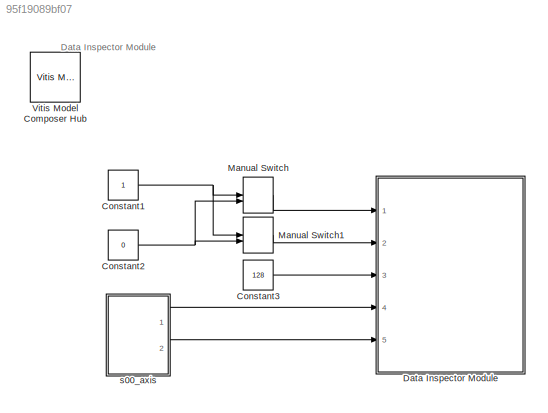
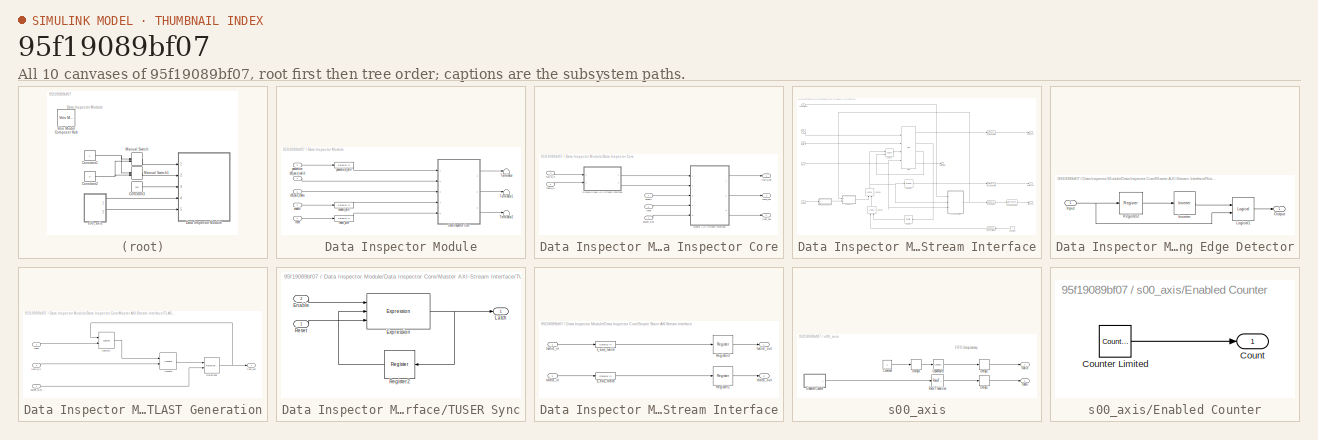
[diagram: thumbnail index - all 10 canvases of the model, root first then tree order]
MODEL slx_95f19089bf07
KIND model
CONFIG AbsTol = auto
CONFIG EnableMultiTasking = off
CONFIG FixedStep = auto
CONFIG InitFcn = data_inspector_module_setup;
CONFIG MaxStep = auto
CONFIG MinStep = auto
CONFIG PreLoadFcn = data_inspector_module_setup;
CONFIG RelTol = 1e-3
CONFIG SampleTimeConstraint = Unconstrained
CONFIG SolverName = VariableStepAuto
CONFIG StartTime = 0.0
CONFIG StopTime = inf
BLOCK [Constant] Constant1
  OutDataTypeStr = boolean
  SampleTime = -1
BLOCK [Constant] Constant2
  OutDataTypeStr = boolean
  SampleTime = -1
  Value = 0
BLOCK [Constant] Constant3
  OutDataTypeStr = uint32
  SampleTime = -1
  Value = 128
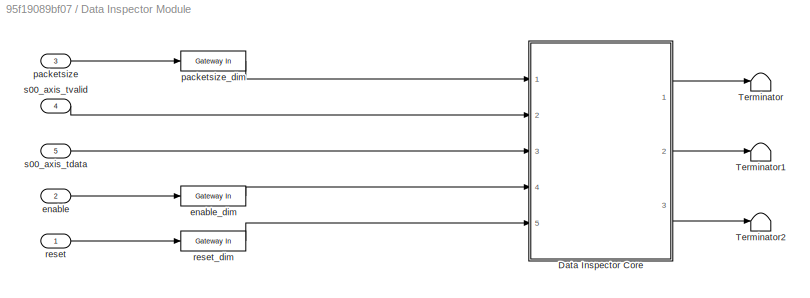
BLOCK [SubSystem] Data Inspector Module
  Ports = [5]
  RequestExecContextInheritance = off
BLOCK [SubSystem] Data Inspector Module/Data Inspector Core
  Ports = [5, 3]
  RequestExecContextInheritance = off
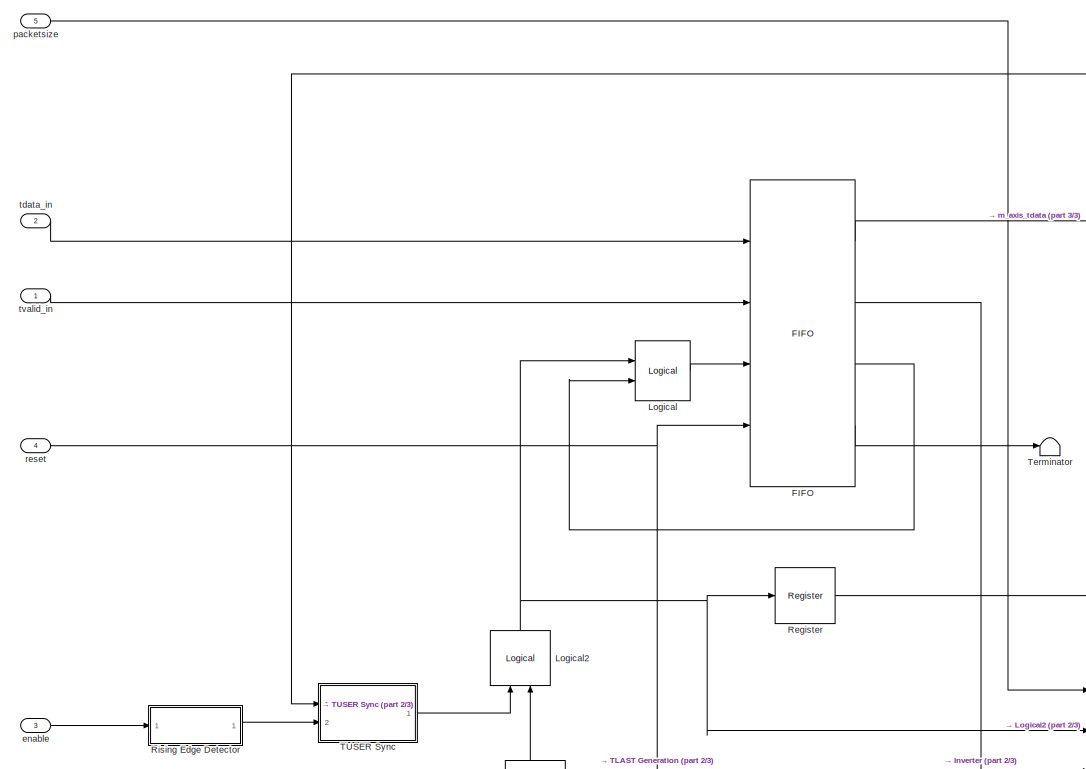
[diagram: Data Inspector Module/Data Inspector Core/Master AXI-Stream Interface - part 1/3, left side, full height]
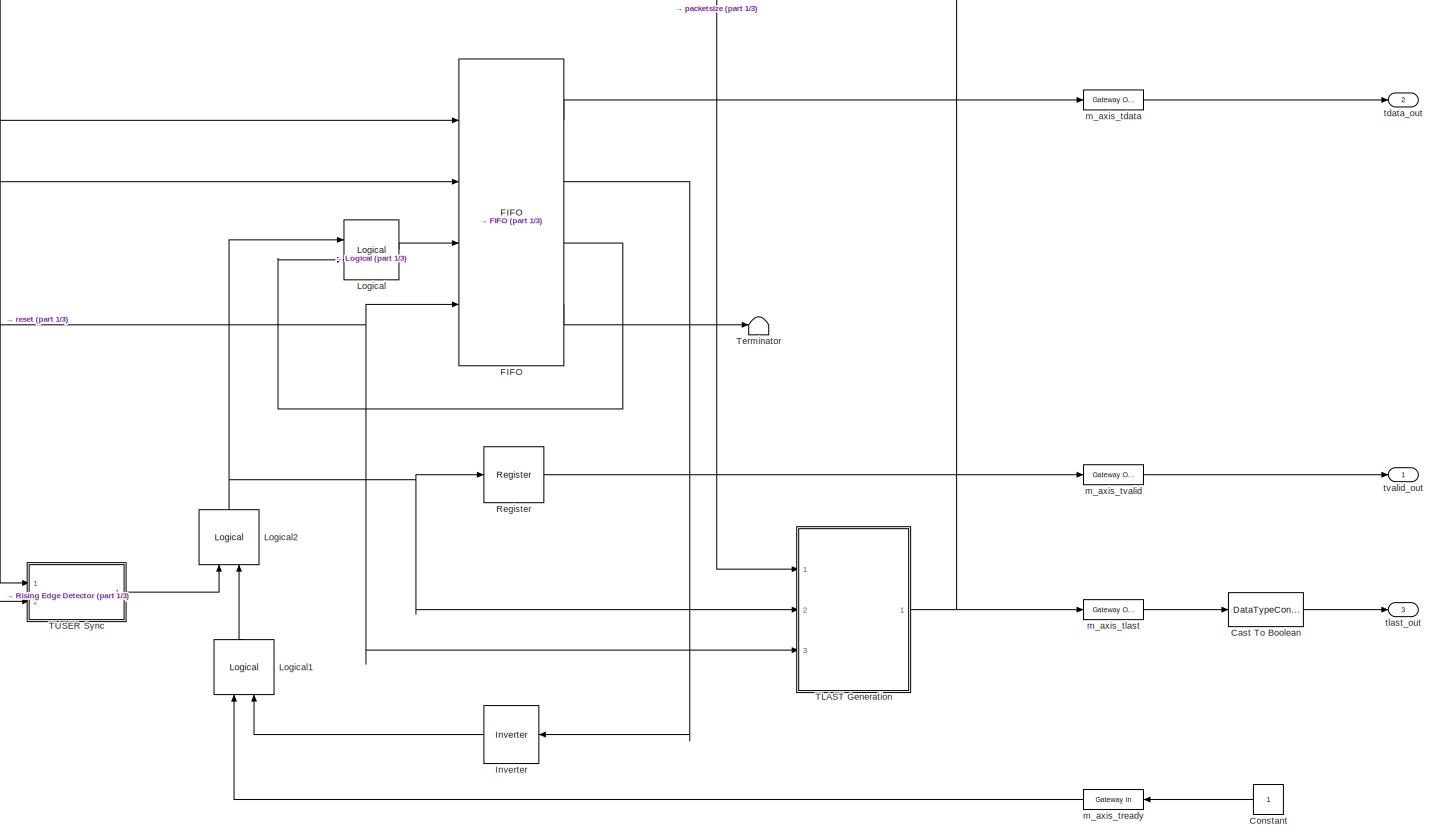
[diagram: Data Inspector Module/Data Inspector Core/Master AXI-Stream Interface - part 2/3, most of the canvas]
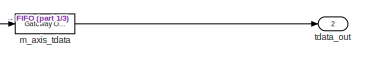
[diagram: Data Inspector Module/Data Inspector Core/Master AXI-Stream Interface - part 3/3, top right region]
BLOCK [SubSystem] Data Inspector Module/Data Inspector Core/Master AXI-Stream Interface
  Ports = [5, 3]
  RequestExecContextInheritance = off
BLOCK [DataTypeConversion] Data Inspector Module/Data Inspector Core/Master AXI-Stream Interface/Cast To Boolean
  OutDataTypeStr = boolean
  RndMeth = Floor
  SaturateOnIntegerOverflow = off
BLOCK [Constant] Data Inspector Module/Data Inspector Core/Master AXI-Stream Interface/Constant
  OutDataTypeStr = boolean
  SampleTime = 1/f_system
BLOCK [Reference] Data Inspector Module/Data Inspector Core/Master AXI-Stream Interface/FIFO  REF=hdlBasic/FIFO
  Ports = [4, 4]
  SourceBlock = hdlBasic/FIFO
  SourceType = FIFO Block Block
BLOCK [Reference] Data Inspector Module/Data Inspector Core/Master AXI-Stream Interface/Inverter  REF=hdlBasic/Inverter
  Ports = [1, 1]
  SourceBlock = hdlBasic/Inverter
  SourceType = Inverter Block
BLOCK [Reference] Data Inspector Module/Data Inspector Core/Master AXI-Stream Interface/Logical  REF=hdlBasic/Logical
  Ports = [2, 1]
  SourceBlock = hdlBasic/Logical
  SourceType = Logical Block Block
BLOCK [Reference] Data Inspector Module/Data Inspector Core/Master AXI-Stream Interface/Logical1  REF=hdlBasic/Logical
  NameLocation = right
  Ports = [2, 1]
  SourceBlock = hdlBasic/Logical
  SourceType = Logical Block Block
BLOCK [Reference] Data Inspector Module/Data Inspector Core/Master AXI-Stream Interface/Logical2  REF=hdlBasic/Logical
  NameLocation = right
  Ports = [2, 1]
  SourceBlock = hdlBasic/Logical
  SourceType = Logical Block Block
BLOCK [Reference] Data Inspector Module/Data Inspector Core/Master AXI-Stream Interface/Register  REF=hdlBasic/Register
  Ports = [1, 1]
  SourceBlock = hdlBasic/Register
  SourceType = Register Block
BLOCK [SubSystem] Data Inspector Module/Data Inspector Core/Master AXI-Stream Interface/Rising Edge Detector
  Ports = [1, 1]
  RequestExecContextInheritance = off
BLOCK [Inport] Data Inspector Module/Data Inspector Core/Master AXI-Stream Interface/Rising Edge Detector/Input
BLOCK [Reference] Data Inspector Module/Data Inspector Core/Master AXI-Stream Interface/Rising Edge Detector/Inverter  REF=hdlBasic/Inverter
  Ports = [1, 1]
  SourceBlock = hdlBasic/Inverter
  SourceType = Inverter Block
BLOCK [Reference] Data Inspector Module/Data Inspector Core/Master AXI-Stream Interface/Rising Edge Detector/Logical1  REF=hdlBasic/Logical
  Ports = [2, 1]
  SourceBlock = hdlBasic/Logical
  SourceType = Logical Block Block
BLOCK [Outport] Data Inspector Module/Data Inspector Core/Master AXI-Stream Interface/Rising Edge Detector/Output
  VectorParamsAs1DForOutWhenUnconnected = off
BLOCK [Reference] Data Inspector Module/Data Inspector Core/Master AXI-Stream Interface/Rising Edge Detector/Register2  REF=hdlBasic/Register
  Ports = [1, 1]
  SourceBlock = hdlBasic/Register
  SourceType = Register Block
BLOCK [SubSystem] Data Inspector Module/Data Inspector Core/Master AXI-Stream Interface/TLAST Generation
  Ports = [3, 1]
  RequestExecContextInheritance = off
BLOCK [Reference] Data Inspector Module/Data Inspector Core/Master AXI-Stream Interface/TLAST Generation/Counter  REF=hdlBasic/Counter
  Ports = [2, 1]
  SourceBlock = hdlBasic/Counter
  SourceType = Counter Block
BLOCK [Reference] Data Inspector Module/Data Inspector Core/Master AXI-Stream Interface/TLAST Generation/Logical2  REF=hdlBasic/Logical
  Ports = [2, 1]
  SourceBlock = hdlBasic/Logical
  SourceType = Logical Block Block
BLOCK [Reference] Data Inspector Module/Data Inspector Core/Master AXI-Stream Interface/TLAST Generation/Relational  REF=hdlBasic/Relational
  Ports = [2, 1]
  SourceBlock = hdlBasic/Relational
  SourceType = Arithmetic Relational Operator Block
BLOCK [Inport] Data Inspector Module/Data Inspector Core/Master AXI-Stream Interface/TLAST Generation/packet_size
BLOCK [Inport] Data Inspector Module/Data Inspector Core/Master AXI-Stream Interface/TLAST Generation/reset
  Port = 3
BLOCK [Outport] Data Inspector Module/Data Inspector Core/Master AXI-Stream Interface/TLAST Generation/tlast_out
  VectorParamsAs1DForOutWhenUnconnected = off
BLOCK [Inport] Data Inspector Module/Data Inspector Core/Master AXI-Stream Interface/TLAST Generation/tvalid_in
  Port = 2
BLOCK [SubSystem] Data Inspector Module/Data Inspector Core/Master AXI-Stream Interface/TUSER Sync
  Ports = [2, 1]
  RequestExecContextInheritance = off
BLOCK [Inport] Data Inspector Module/Data Inspector Core/Master AXI-Stream Interface/TUSER Sync/Enable
  Port = 2
BLOCK [Reference] Data Inspector Module/Data Inspector Core/Master AXI-Stream Interface/TUSER Sync/Expression  REF=hdlBasic/Expression
  Ports = [3, 1]
  SourceBlock = hdlBasic/Expression
  SourceType = Bitwise Expression Evaluator Block
BLOCK [Outport] Data Inspector Module/Data Inspector Core/Master AXI-Stream Interface/TUSER Sync/Latch
  VectorParamsAs1DForOutWhenUnconnected = off
BLOCK [Reference] Data Inspector Module/Data Inspector Core/Master AXI-Stream Interface/TUSER Sync/Register2  REF=hdlBasic/Register
  Ports = [1, 1]
  SourceBlock = hdlBasic/Register
  SourceType = Register Block
BLOCK [Inport] Data Inspector Module/Data Inspector Core/Master AXI-Stream Interface/TUSER Sync/Reset
BLOCK [Terminator] Data Inspector Module/Data Inspector Core/Master AXI-Stream Interface/Terminator
BLOCK [Inport] Data Inspector Module/Data Inspector Core/Master AXI-Stream Interface/enable
  Port = 3
BLOCK [Reference] Data Inspector Module/Data Inspector Core/Master AXI-Stream Interface/m_axis_tdata  REF=hdlBasic/Gateway Out
  Ports = [1, 1]
  SourceBlock = hdlBasic/Gateway Out
  SourceType = Gateway Out Block
BLOCK [Reference] Data Inspector Module/Data Inspector Core/Master AXI-Stream Interface/m_axis_tlast  REF=hdlBasic/Gateway Out
  Ports = [1, 1]
  SourceBlock = hdlBasic/Gateway Out
  SourceType = Gateway Out Block
BLOCK [Reference] Data Inspector Module/Data Inspector Core/Master AXI-Stream Interface/m_axis_tready  REF=hdlBasic/Gateway In
  Ports = [1, 1]
  SourceBlock = hdlBasic/Gateway In
  SourceType = Gateway In Block
BLOCK [Reference] Data Inspector Module/Data Inspector Core/Master AXI-Stream Interface/m_axis_tvalid  REF=hdlBasic/Gateway Out
  Ports = [1, 1]
  SourceBlock = hdlBasic/Gateway Out
  SourceType = Gateway Out Block
BLOCK [Inport] Data Inspector Module/Data Inspector Core/Master AXI-Stream Interface/packetsize
  Port = 5
BLOCK [Inport] Data Inspector Module/Data Inspector Core/Master AXI-Stream Interface/reset
  Port = 4
BLOCK [Inport] Data Inspector Module/Data Inspector Core/Master AXI-Stream Interface/tdata_in
  Port = 2
BLOCK [Outport] Data Inspector Module/Data Inspector Core/Master AXI-Stream Interface/tdata_out
  Port = 2
  VectorParamsAs1DForOutWhenUnconnected = off
BLOCK [Outport] Data Inspector Module/Data Inspector Core/Master AXI-Stream Interface/tlast_out
  Port = 3
  VectorParamsAs1DForOutWhenUnconnected = off
BLOCK [Inport] Data Inspector Module/Data Inspector Core/Master AXI-Stream Interface/tvalid_in
BLOCK [Outport] Data Inspector Module/Data Inspector Core/Master AXI-Stream Interface/tvalid_out
  VectorParamsAs1DForOutWhenUnconnected = off
BLOCK [SubSystem] Data Inspector Module/Data Inspector Core/Simple Slave AXI-Stream Interface
  Ports = [2, 2]
  RequestExecContextInheritance = off
BLOCK [Reference] Data Inspector Module/Data Inspector Core/Simple Slave AXI-Stream Interface/Register1  REF=hdlBasic/Register
  Ports = [1, 1]
  SourceBlock = hdlBasic/Register
  SourceType = Register Block
BLOCK [Reference] Data Inspector Module/Data Inspector Core/Simple Slave AXI-Stream Interface/Register3  REF=hdlBasic/Register
  Ports = [1, 1]
  SourceBlock = hdlBasic/Register
  SourceType = Register Block
BLOCK [Reference] Data Inspector Module/Data Inspector Core/Simple Slave AXI-Stream Interface/s_axis_tdata  REF=hdlBasic/Gateway In
  Ports = [1, 1]
  SourceBlock = hdlBasic/Gateway In
  SourceType = Gateway In Block
BLOCK [Reference] Data Inspector Module/Data Inspector Core/Simple Slave AXI-Stream Interface/s_axis_tvalid  REF=hdlBasic/Gateway In
  Ports = [1, 1]
  SourceBlock = hdlBasic/Gateway In
  SourceType = Gateway In Block
BLOCK [Inport] Data Inspector Module/Data Inspector Core/Simple Slave AXI-Stream Interface/tdata_in
  Port = 2
BLOCK [Outport] Data Inspector Module/Data Inspector Core/Simple Slave AXI-Stream Interface/tdata_out
  Port = 2
  VectorParamsAs1DForOutWhenUnconnected = off
BLOCK [Inport] Data Inspector Module/Data Inspector Core/Simple Slave AXI-Stream Interface/tvalid_in
BLOCK [Outport] Data Inspector Module/Data Inspector Core/Simple Slave AXI-Stream Interface/tvalid_out
  VectorParamsAs1DForOutWhenUnconnected = off
BLOCK [Inport] Data Inspector Module/Data Inspector Core/enable
  Port = 4
BLOCK [Inport] Data Inspector Module/Data Inspector Core/packet_size
BLOCK [Inport] Data Inspector Module/Data Inspector Core/reset
  Port = 5
BLOCK [Inport] Data Inspector Module/Data Inspector Core/tdata_in
  Port = 3
BLOCK [Outport] Data Inspector Module/Data Inspector Core/tdata_out
  Port = 2
  VectorParamsAs1DForOutWhenUnconnected = off
BLOCK [Outport] Data Inspector Module/Data Inspector Core/tlast_out
  Port = 3
  VectorParamsAs1DForOutWhenUnconnected = off
BLOCK [Inport] Data Inspector Module/Data Inspector Core/tvalid_in
  Port = 2
BLOCK [Outport] Data Inspector Module/Data Inspector Core/tvalid_out
  VectorParamsAs1DForOutWhenUnconnected = off
BLOCK [Terminator] Data Inspector Module/Terminator
BLOCK [Terminator] Data Inspector Module/Terminator1
BLOCK [Terminator] Data Inspector Module/Terminator2
BLOCK [Inport] Data Inspector Module/enable
  Port = 2
BLOCK [Reference] Data Inspector Module/enable_dim  REF=hdlBasic/Gateway In
  Ports = [1, 1]
  SourceBlock = hdlBasic/Gateway In
  SourceType = Gateway In Block
BLOCK [Inport] Data Inspector Module/packetsize
  Port = 3
BLOCK [Reference] Data Inspector Module/packetsize_dim  REF=hdlBasic/Gateway In
  Ports = [1, 1]
  SourceBlock = hdlBasic/Gateway In
  SourceType = Gateway In Block
BLOCK [Inport] Data Inspector Module/reset
BLOCK [Reference] Data Inspector Module/reset_dim  REF=hdlBasic/Gateway In
  Ports = [1, 1]
  SourceBlock = hdlBasic/Gateway In
  SourceType = Gateway In Block
BLOCK [Inport] Data Inspector Module/s00_axis_tdata
  Port = 5
BLOCK [Inport] Data Inspector Module/s00_axis_tvalid
  Port = 4
BLOCK [ManualSwitch] Manual Switch
  CurrentSetting = 0
BLOCK [ManualSwitch] Manual Switch1
BLOCK [Reference] Vitis Model Composer Hub  REF=vmcUtilities/Vitis Model Composer Hub
  Ports = []
  SourceBlock = vmcUtilities/Vitis Model Composer Hub
  SourceType = VMC Hub
  Tag = genX
  UserDataPersistent = on
BLOCK [SubSystem] s00_axis
  Ports = [0, 2]
  RequestExecContextInheritance = off
BLOCK [Constant] s00_axis/Constant
  OutDataTypeStr = boolean
  SampleTime = -1
BLOCK [Delay] s00_axis/Delay1
  DelayLength = 5
  InputPortMap = u0
  Ports = [1, 1]
BLOCK [Delay] s00_axis/Delay2
  DelayLength = 5
  InputPortMap = u0
  Ports = [1, 1]
BLOCK [Delay] s00_axis/Delay3
  DelayLength = 1
  InputPortMap = u0
  Ports = [1, 1]
BLOCK [SubSystem] s00_axis/Enabled Counter
  Ports = [0, 1]
  RequestExecContextInheritance = off
  TreatAsAtomicUnit = on
BLOCK [Outport] s00_axis/Enabled Counter/Count
  VectorParamsAs1DForOutWhenUnconnected = off
BLOCK [Reference] s00_axis/Enabled Counter/Counter Limited  REF=simulink/Sources/Counter
Limited
  Ports = [0, 1]
  SourceBlock = simulink/Sources/Counter\nLimited
  SourceProductBaseCode = SL
  SourceType = Counter Limited
BLOCK [RateTransition] s00_axis/Rate Transition
  OutPortSampleTime = 1/f_system
BLOCK [Reference] s00_axis/Upsample1  REF=dspsigops/Upsample
  Ports = [1, 1]
  SourceBlock = dspsigops/Upsample
  SourceProductBaseCode = DS
  SourceType = Upsample
  UserDataPersistent = on
BLOCK [Outport] s00_axis/tdata
  Port = 2
  VectorParamsAs1DForOutWhenUnconnected = off
BLOCK [Outport] s00_axis/tvalid
  VectorParamsAs1DForOutWhenUnconnected = off
ANNOTATION (root): Data Inspector Module
ANNOTATION s00_axis: FIFO Setup Latency
NET Constant1:1 -> Manual Switch1:1, Manual Switch:1
NET Constant2:1 -> Manual Switch1:2, Manual Switch:2
LINE Constant3:1 -> Data Inspector Module:3
LINE Data Inspector Module/Data Inspector Core/Master AXI-Stream Interface/Cast To Boolean:1 -> Data Inspector Module/Data Inspector Core/Master AXI-Stream Interface/tlast_out:1
LINE Data Inspector Module/Data Inspector Core/Master AXI-Stream Interface/Constant:1 -> Data Inspector Module/Data Inspector Core/Master AXI-Stream Interface/m_axis_tready:1
LINE Data Inspector Module/Data Inspector Core/Master AXI-Stream Interface/FIFO:1 -> Data Inspector Module/Data Inspector Core/Master AXI-Stream Interface/m_axis_tdata:1
LINE Data Inspector Module/Data Inspector Core/Master AXI-Stream Interface/FIFO:2 -> Data Inspector Module/Data Inspector Core/Master AXI-Stream Interface/Inverter:1
LINE Data Inspector Module/Data Inspector Core/Master AXI-Stream Interface/FIFO:3 -> Data Inspector Module/Data Inspector Core/Master AXI-Stream Interface/Logical:2
LINE Data Inspector Module/Data Inspector Core/Master AXI-Stream Interface/FIFO:4 -> Data Inspector Module/Data Inspector Core/Master AXI-Stream Interface/Terminator:1
LINE Data Inspector Module/Data Inspector Core/Master AXI-Stream Interface/Inverter:1 -> Data Inspector Module/Data Inspector Core/Master AXI-Stream Interface/Logical1:2
LINE Data Inspector Module/Data Inspector Core/Master AXI-Stream Interface/Logical1:1 -> Data Inspector Module/Data Inspector Core/Master AXI-Stream Interface/Logical2:2
NET Data Inspector Module/Data Inspector Core/Master AXI-Stream Interface/Logical2:1 -> Data Inspector Module/Data Inspector Core/Master AXI-Stream Interface/Logical:1, Data Inspector Module/Data Inspector Core/Master AXI-Stream Interface/Register:1, Data Inspector Module/Data Inspector Core/Master AXI-Stream Interface/TLAST Generation:2
LINE Data Inspector Module/Data Inspector Core/Master AXI-Stream Interface/Logical:1 -> Data Inspector Module/Data Inspector Core/Master AXI-Stream Interface/FIFO:3
LINE Data Inspector Module/Data Inspector Core/Master AXI-Stream Interface/Register:1 -> Data Inspector Module/Data Inspector Core/Master AXI-Stream Interface/m_axis_tvalid:1
NET Data Inspector Module/Data Inspector Core/Master AXI-Stream Interface/Rising Edge Detector/Input:1 -> Data Inspector Module/Data Inspector Core/Master AXI-Stream Interface/Rising Edge Detector/Logical1:2, Data Inspector Module/Data Inspector Core/Master AXI-Stream Interface/Rising Edge Detector/Register2:1
LINE Data Inspector Module/Data Inspector Core/Master AXI-Stream Interface/Rising Edge Detector/Inverter:1 -> Data Inspector Module/Data Inspector Core/Master AXI-Stream Interface/Rising Edge Detector/Logical1:1
LINE Data Inspector Module/Data Inspector Core/Master AXI-Stream Interface/Rising Edge Detector/Logical1:1 -> Data Inspector Module/Data Inspector Core/Master AXI-Stream Interface/Rising Edge Detector/Output:1
LINE Data Inspector Module/Data Inspector Core/Master AXI-Stream Interface/Rising Edge Detector/Register2:1 -> Data Inspector Module/Data Inspector Core/Master AXI-Stream Interface/Rising Edge Detector/Inverter:1
LINE Data Inspector Module/Data Inspector Core/Master AXI-Stream Interface/Rising Edge Detector:1 -> Data Inspector Module/Data Inspector Core/Master AXI-Stream Interface/TUSER Sync:2
LINE Data Inspector Module/Data Inspector Core/Master AXI-Stream Interface/TLAST Generation/Counter:1 -> Data Inspector Module/Data Inspector Core/Master AXI-Stream Interface/TLAST Generation/Relational:1
LINE Data Inspector Module/Data Inspector Core/Master AXI-Stream Interface/TLAST Generation/Logical2:1 -> Data Inspector Module/Data Inspector Core/Master AXI-Stream Interface/TLAST Generation/Counter:1
NET Data Inspector Module/Data Inspector Core/Master AXI-Stream Interface/TLAST Generation/Relational:1 -> Data Inspector Module/Data Inspector Core/Master AXI-Stream Interface/TLAST Generation/Logical2:1, Data Inspector Module/Data Inspector Core/Master AXI-Stream Interface/TLAST Generation/tlast_out:1
LINE Data Inspector Module/Data Inspector Core/Master AXI-Stream Interface/TLAST Generation/packet_size:1 -> Data Inspector Module/Data Inspector Core/Master AXI-Stream Interface/TLAST Generation/Relational:2
LINE Data Inspector Module/Data Inspector Core/Master AXI-Stream Interface/TLAST Generation/reset:1 -> Data Inspector Module/Data Inspector Core/Master AXI-Stream Interface/TLAST Generation/Logical2:2
LINE Data Inspector Module/Data Inspector Core/Master AXI-Stream Interface/TLAST Generation/tvalid_in:1 -> Data Inspector Module/Data Inspector Core/Master AXI-Stream Interface/TLAST Generation/Counter:2
NET Data Inspector Module/Data Inspector Core/Master AXI-Stream Interface/TLAST Generation:1 -> Data Inspector Module/Data Inspector Core/Master AXI-Stream Interface/TUSER Sync:1, Data Inspector Module/Data Inspector Core/Master AXI-Stream Interface/m_axis_tlast:1
LINE Data Inspector Module/Data Inspector Core/Master AXI-Stream Interface/TUSER Sync/Enable:1 -> Data Inspector Module/Data Inspector Core/Master AXI-Stream Interface/TUSER Sync/Expression:1
NET Data Inspector Module/Data Inspector Core/Master AXI-Stream Interface/TUSER Sync/Expression:1 -> Data Inspector Module/Data Inspector Core/Master AXI-Stream Interface/TUSER Sync/Latch:1, Data Inspector Module/Data Inspector Core/Master AXI-Stream Interface/TUSER Sync/Register2:1
LINE Data Inspector Module/Data Inspector Core/Master AXI-Stream Interface/TUSER Sync/Register2:1 -> Data Inspector Module/Data Inspector Core/Master AXI-Stream Interface/TUSER Sync/Expression:2
LINE Data Inspector Module/Data Inspector Core/Master AXI-Stream Interface/TUSER Sync/Reset:1 -> Data Inspector Module/Data Inspector Core/Master AXI-Stream Interface/TUSER Sync/Expression:3
LINE Data Inspector Module/Data Inspector Core/Master AXI-Stream Interface/TUSER Sync:1 -> Data Inspector Module/Data Inspector Core/Master AXI-Stream Interface/Logical2:1
LINE Data Inspector Module/Data Inspector Core/Master AXI-Stream Interface/enable:1 -> Data Inspector Module/Data Inspector Core/Master AXI-Stream Interface/Rising Edge Detector:1
LINE Data Inspector Module/Data Inspector Core/Master AXI-Stream Interface/m_axis_tdata:1 -> Data Inspector Module/Data Inspector Core/Master AXI-Stream Interface/tdata_out:1
LINE Data Inspector Module/Data Inspector Core/Master AXI-Stream Interface/m_axis_tlast:1 -> Data Inspector Module/Data Inspector Core/Master AXI-Stream Interface/Cast To Boolean:1
LINE Data Inspector Module/Data Inspector Core/Master AXI-Stream Interface/m_axis_tready:1 -> Data Inspector Module/Data Inspector Core/Master AXI-Stream Interface/Logical1:1
LINE Data Inspector Module/Data Inspector Core/Master AXI-Stream Interface/m_axis_tvalid:1 -> Data Inspector Module/Data Inspector Core/Master AXI-Stream Interface/tvalid_out:1
LINE Data Inspector Module/Data Inspector Core/Master AXI-Stream Interface/packetsize:1 -> Data Inspector Module/Data Inspector Core/Master AXI-Stream Interface/TLAST Generation:1
NET Data Inspector Module/Data Inspector Core/Master AXI-Stream Interface/reset:1 -> Data Inspector Module/Data Inspector Core/Master AXI-Stream Interface/FIFO:4, Data Inspector Module/Data Inspector Core/Master AXI-Stream Interface/TLAST Generation:3
LINE Data Inspector Module/Data Inspector Core/Master AXI-Stream Interface/tdata_in:1 -> Data Inspector Module/Data Inspector Core/Master AXI-Stream Interface/FIFO:1
LINE Data Inspector Module/Data Inspector Core/Master AXI-Stream Interface/tvalid_in:1 -> Data Inspector Module/Data Inspector Core/Master AXI-Stream Interface/FIFO:2
LINE Data Inspector Module/Data Inspector Core/Master AXI-Stream Interface:1 -> Data Inspector Module/Data Inspector Core/tvalid_out:1
LINE Data Inspector Module/Data Inspector Core/Master AXI-Stream Interface:2 -> Data Inspector Module/Data Inspector Core/tdata_out:1
LINE Data Inspector Module/Data Inspector Core/Master AXI-Stream Interface:3 -> Data Inspector Module/Data Inspector Core/tlast_out:1
LINE Data Inspector Module/Data Inspector Core/Simple Slave AXI-Stream Interface/Register1:1 -> Data Inspector Module/Data Inspector Core/Simple Slave AXI-Stream Interface/tdata_out:1
LINE Data Inspector Module/Data Inspector Core/Simple Slave AXI-Stream Interface/Register3:1 -> Data Inspector Module/Data Inspector Core/Simple Slave AXI-Stream Interface/tvalid_out:1
LINE Data Inspector Module/Data Inspector Core/Simple Slave AXI-Stream Interface/s_axis_tdata:1 -> Data Inspector Module/Data Inspector Core/Simple Slave AXI-Stream Interface/Register1:1
LINE Data Inspector Module/Data Inspector Core/Simple Slave AXI-Stream Interface/s_axis_tvalid:1 -> Data Inspector Module/Data Inspector Core/Simple Slave AXI-Stream Interface/Register3:1
LINE Data Inspector Module/Data Inspector Core/Simple Slave AXI-Stream Interface/tdata_in:1 -> Data Inspector Module/Data Inspector Core/Simple Slave AXI-Stream Interface/s_axis_tdata:1
LINE Data Inspector Module/Data Inspector Core/Simple Slave AXI-Stream Interface/tvalid_in:1 -> Data Inspector Module/Data Inspector Core/Simple Slave AXI-Stream Interface/s_axis_tvalid:1
LINE Data Inspector Module/Data Inspector Core/Simple Slave AXI-Stream Interface:1 -> Data Inspector Module/Data Inspector Core/Master AXI-Stream Interface:1
LINE Data Inspector Module/Data Inspector Core/Simple Slave AXI-Stream Interface:2 -> Data Inspector Module/Data Inspector Core/Master AXI-Stream Interface:2
LINE Data Inspector Module/Data Inspector Core/enable:1 -> Data Inspector Module/Data Inspector Core/Master AXI-Stream Interface:3
LINE Data Inspector Module/Data Inspector Core/packet_size:1 -> Data Inspector Module/Data Inspector Core/Master AXI-Stream Interface:5
LINE Data Inspector Module/Data Inspector Core/reset:1 -> Data Inspector Module/Data Inspector Core/Master AXI-Stream Interface:4
LINE Data Inspector Module/Data Inspector Core/tdata_in:1 -> Data Inspector Module/Data Inspector Core/Simple Slave AXI-Stream Interface:2
LINE Data Inspector Module/Data Inspector Core/tvalid_in:1 -> Data Inspector Module/Data Inspector Core/Simple Slave AXI-Stream Interface:1
LINE Data Inspector Module/Data Inspector Core:1 -> Data Inspector Module/Terminator:1
LINE Data Inspector Module/Data Inspector Core:2 -> Data Inspector Module/Terminator1:1
LINE Data Inspector Module/Data Inspector Core:3 -> Data Inspector Module/Terminator2:1
LINE Data Inspector Module/enable:1 -> Data Inspector Module/enable_dim:1
LINE Data Inspector Module/enable_dim:1 -> Data Inspector Module/Data Inspector Core:4
LINE Data Inspector Module/packetsize:1 -> Data Inspector Module/packetsize_dim:1
LINE Data Inspector Module/packetsize_dim:1 -> Data Inspector Module/Data Inspector Core:1
LINE Data Inspector Module/reset:1 -> Data Inspector Module/reset_dim:1
LINE Data Inspector Module/reset_dim:1 -> Data Inspector Module/Data Inspector Core:5
LINE Data Inspector Module/s00_axis_tdata:1 -> Data Inspector Module/Data Inspector Core:3
LINE Data Inspector Module/s00_axis_tvalid:1 -> Data Inspector Module/Data Inspector Core:2
LINE Manual Switch1:1 -> Data Inspector Module:2
LINE Manual Switch:1 -> Data Inspector Module:1
LINE s00_axis/Constant:1 -> s00_axis/Delay3:1
LINE s00_axis/Delay1:1 -> s00_axis/tdata:1
LINE s00_axis/Delay2:1 -> s00_axis/tvalid:1
LINE s00_axis/Delay3:1 -> s00_axis/Upsample1:1
LINE s00_axis/Enabled Counter/Counter Limited:1 -> s00_axis/Enabled Counter/Count:1
LINE s00_axis/Enabled Counter:1 -> s00_axis/Rate Transition:1
LINE s00_axis/Rate Transition:1 -> s00_axis/Delay1:1
LINE s00_axis/Upsample1:1 -> s00_axis/Delay2:1
LINE s00_axis:1 -> Data Inspector Module:4
LINE s00_axis:2 -> Data Inspector Module:5
note: NET lines group one-source signal fan-out (src -> all destinations, sorted); 1:1 wires keep LINE
